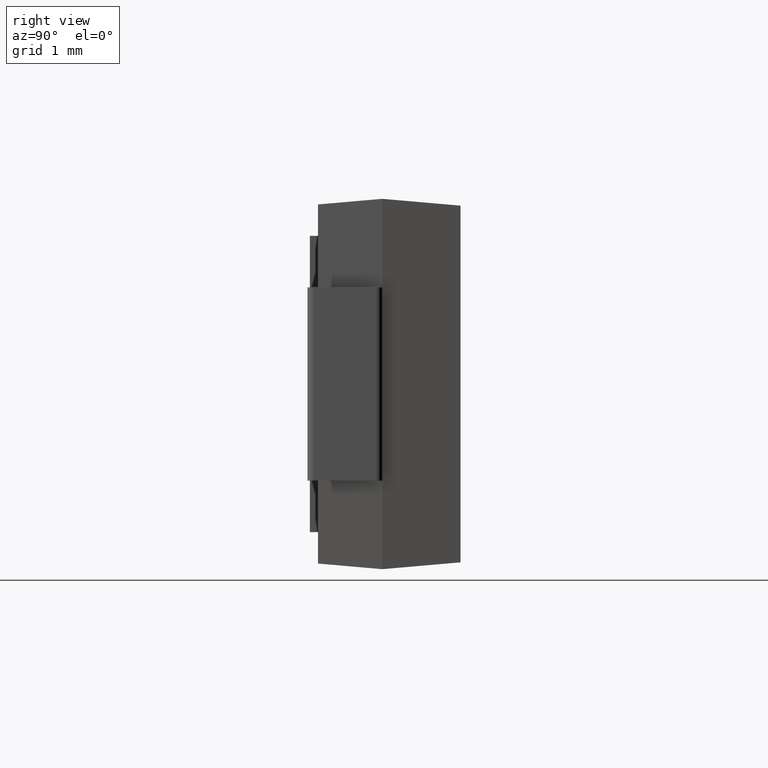
[diagram: clean part render]
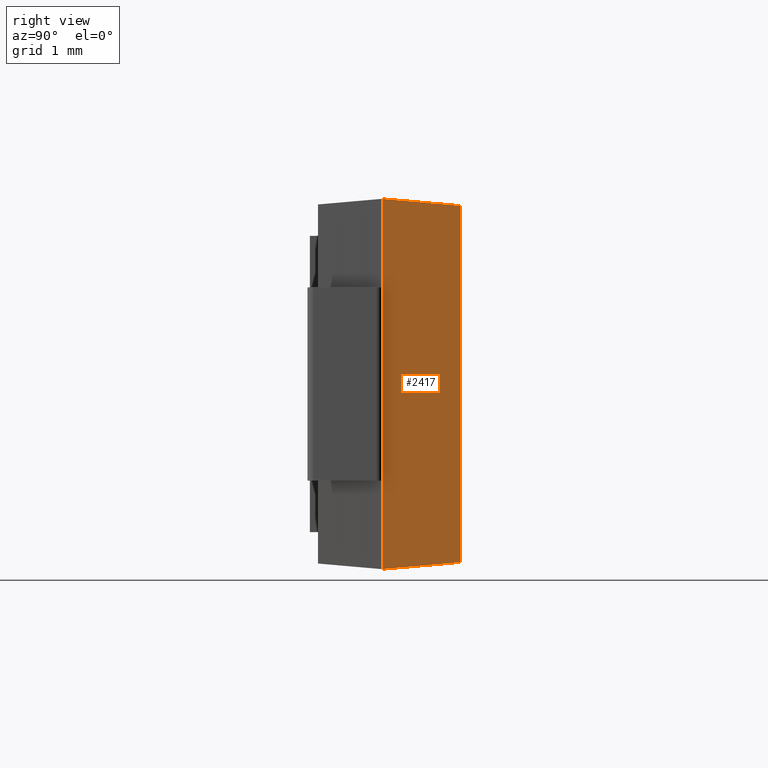
[diagram: same view with one face highlighted and labeled with its STEP entity id]
A machine part, right view. The second image highlights one B-rep face of the part: STEP entity #2417.
In plain terms, the highlighted planar face has unit normal (0.9962, 0.0872, -0).
Its self-contained STEP definition (entity closure, byte-faithful):
#4 = DIRECTION ( 'NONE',  ( -0.08682659386424762500, -0.9924325091389669700, 0.08682659386424763900 ) ) ;
#44 = EDGE_CURVE ( 'NONE', #1881, #1604, #2619, .T. ) ;
#48 = LINE ( 'NONE', #2359, #3499 ) ;
#490 = ORIENTED_EDGE ( 'NONE', *, *, #1559, .F. ) ;
#757 = DIRECTION ( 'NONE',  ( -0.08682659386424762500, -0.9924325091389669700, -0.08682659386424762500 ) ) ;
#884 = DIRECTION ( 'NONE',  ( -0.0000000000000000000, -0.0000000000000000000, 1.000000000000000000 ) ) ;
#937 = VERTEX_POINT ( 'NONE', #3168 ) ;
#965 = VERTEX_POINT ( 'NONE', #3434 ) ;
#1178 = VECTOR ( 'NONE', #1828, 1000.000000000000000 ) ;
#1255 = LINE ( 'NONE', #1841, #1178 ) ;
#1289 = ORIENTED_EDGE ( 'NONE', *, *, #2589, .T. ) ;
#1328 = AXIS2_PLACEMENT_3D ( 'NONE', #1672, #3480, #1341 ) ;
#1341 = DIRECTION ( 'NONE',  ( -0.08715574274765820800, -0.9961946980917455500, 0.0000000000000000000 ) ) ;
#1559 = EDGE_CURVE ( 'NONE', #965, #1604, #48, .T. ) ;
#1604 = VERTEX_POINT ( 'NONE', #2401 ) ;
#1672 = CARTESIAN_POINT ( 'NONE',  ( -3.670000000000000800, 0.0000000000000000000, 2.300000000000000300 ) ) ;
#1828 = DIRECTION ( 'NONE',  ( -0.0000000000000000000, -0.0000000000000000000, 1.000000000000000000 ) ) ;
#1841 = CARTESIAN_POINT ( 'NONE',  ( -3.585135996379854800, 0.9700000000000000800, 2.300000000000000300 ) ) ;
#1881 = VERTEX_POINT ( 'NONE', #3498 ) ;
#1949 = PLANE ( 'NONE',  #1328 ) ;
#2058 = VECTOR ( 'NONE', #757, 1000.000000000000100 ) ;
#2060 = VECTOR ( 'NONE', #884, 1000.000000000000000 ) ;
#2241 = FACE_OUTER_BOUND ( 'NONE', #3727, .T. ) ;
#2287 = ORIENTED_EDGE ( 'NONE', *, *, #3023, .F. ) ;
#2359 = CARTESIAN_POINT ( 'NONE',  ( -3.614664786668828600, 0.6324843825597503700, 2.244664786668828500 ) ) ;
#2401 = CARTESIAN_POINT ( 'NONE',  ( -3.670000000000000800, 0.0000000000000000000, 2.300000000000000300 ) ) ;
#2417 = ADVANCED_FACE ( 'NONE', ( #2241 ), #1949, .T. ) ;
#2589 = EDGE_CURVE ( 'NONE', #937, #1881, #2955, .T. ) ;
#2619 = LINE ( 'NONE', #2669, #2060 ) ;
#2669 = CARTESIAN_POINT ( 'NONE',  ( -3.670000000000000800, 0.0000000000000000000, 2.300000000000000300 ) ) ;
#2955 = LINE ( 'NONE', #3145, #2058 ) ;
#3023 = EDGE_CURVE ( 'NONE', #937, #965, #1255, .T. ) ;
#3145 = CARTESIAN_POINT ( 'NONE',  ( -3.635321255950492600, 0.3963798582799524800, -2.265321255950491200 ) ) ;
#3168 = CARTESIAN_POINT ( 'NONE',  ( -3.585135996379854800, 0.9700000000000000800, -2.215135996379853400 ) ) ;
#3434 = CARTESIAN_POINT ( 'NONE',  ( -3.585135996379854800, 0.9700000000000000800, 2.215135996379854300 ) ) ;
#3480 = DIRECTION ( 'NONE',  ( -0.9961946980917455500, 0.08715574274765820800, 0.0000000000000000000 ) ) ;
#3498 = CARTESIAN_POINT ( 'NONE',  ( -3.670000000000000800, 0.0000000000000000000, -2.299999999999999400 ) ) ;
#3499 = VECTOR ( 'NONE', #4, 1000.000000000000100 ) ;
#3727 = EDGE_LOOP ( 'NONE', ( #3905, #490, #2287, #1289 ) ) ;
#3905 = ORIENTED_EDGE ( 'NONE', *, *, #44, .T. ) ;